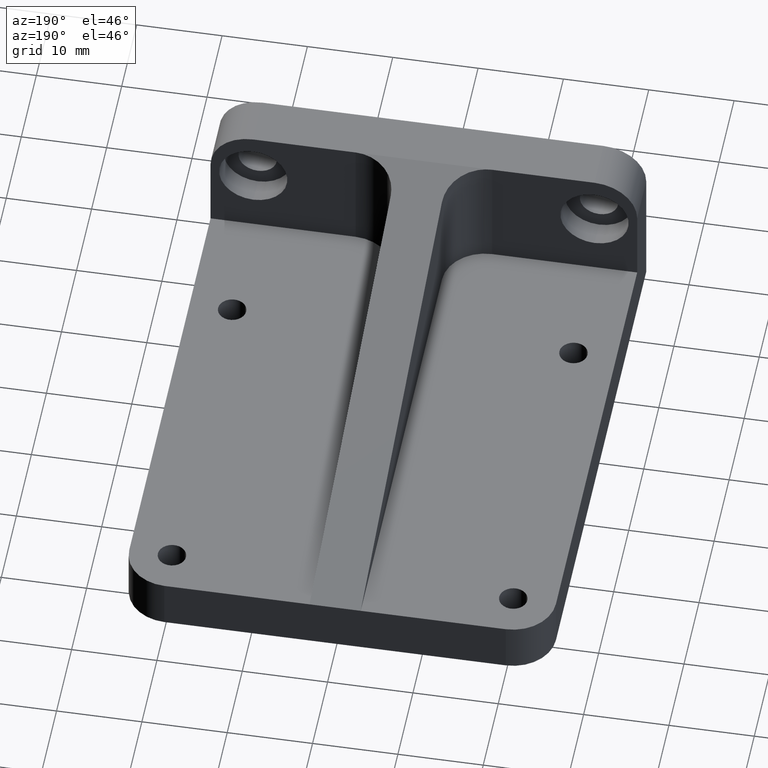
[diagram: clean part render]
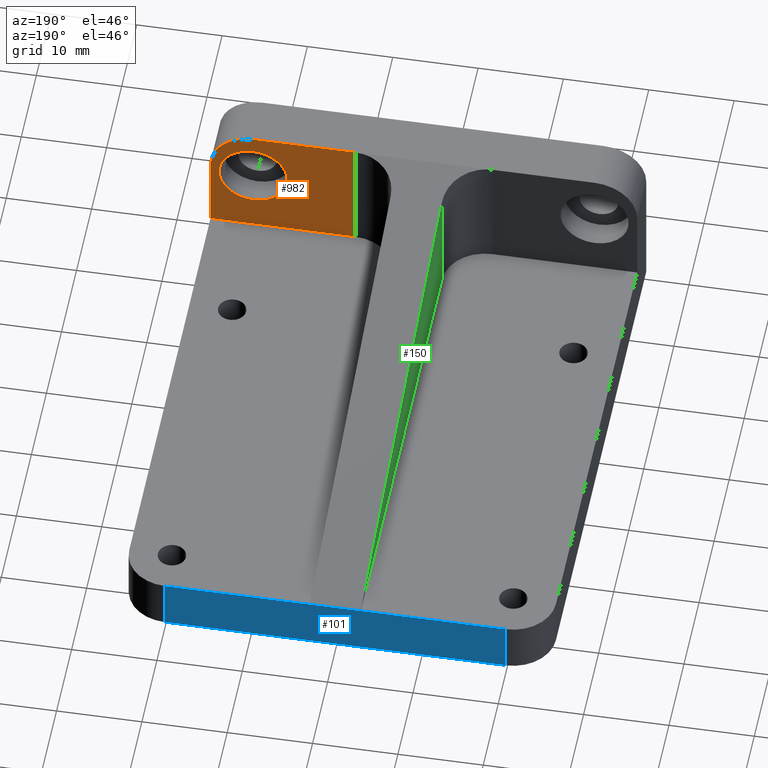
[diagram: same view with three faces highlighted in distinct colors, each labeled with its STEP entity id]
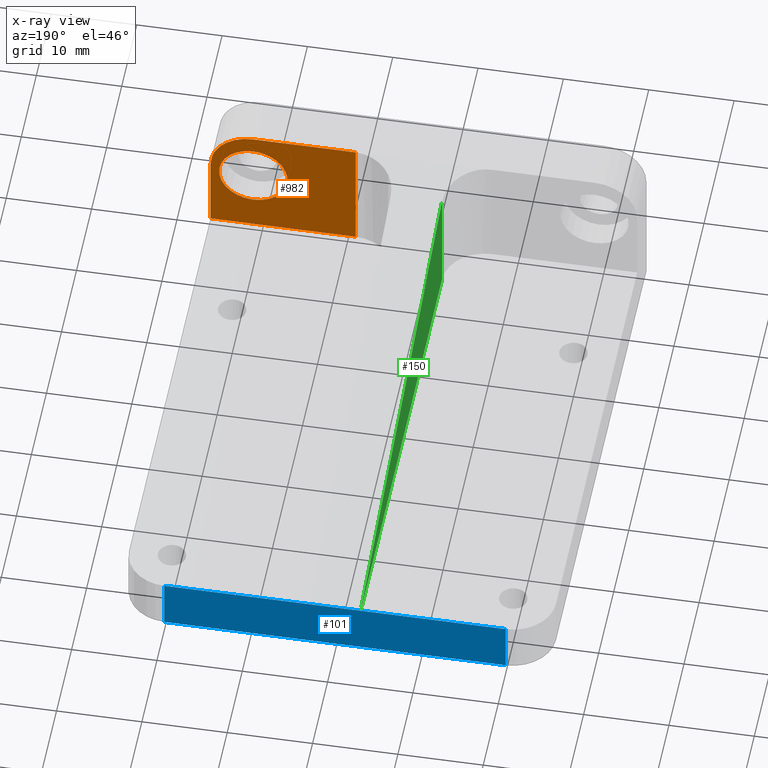
[diagram: x-ray of the same camera — body ghosted, the three highlighted faces saturated]
A machine part, auxiliary view with three faces highlighted in distinct colors.
The next image is the same camera in x-ray (body ghosted, the three faces saturated) — at least one of them is partly hidden behind the body in this view.
Their STEP definitions:

[orange] entity #982 — the highlighted planar face has unit normal (-0, -1, 0).
#4 = ORIENTED_EDGE ( 'NONE', *, *, #549, .T. ) ;
#6 = LINE ( 'NONE', #694, #988 ) ;
#36 = ORIENTED_EDGE ( 'NONE', *, *, #595, .T. ) ;
#43 = ORIENTED_EDGE ( 'NONE', *, *, #643, .F. ) ;
#82 = VERTEX_POINT ( 'NONE', #650 ) ;
#83 = VERTEX_POINT ( 'NONE', #743 ) ;
#97 = ORIENTED_EDGE ( 'NONE', *, *, #1219, .T. ) ;
#114 = AXIS2_PLACEMENT_3D ( 'NONE', #353, #948, #1125 ) ;
#142 = CARTESIAN_POINT ( 'NONE',  ( 20.00000000000000000, 5.999999999999997335, 20.00000000000000000 ) ) ;
#176 = DIRECTION ( 'NONE',  ( -0.0000000000000000000, 1.000000000000000000, -0.0000000000000000000 ) ) ;
#190 = DIRECTION ( 'NONE',  ( 0.0000000000000000000, 0.0000000000000000000, 1.000000000000000000 ) ) ;
#249 = DIRECTION ( 'NONE',  ( 1.000000000000000000, 0.0000000000000000000, 0.0000000000000000000 ) ) ;
#297 = EDGE_CURVE ( 'NONE', #851, #1053, #416, .T. ) ;
#319 = DIRECTION ( 'NONE',  ( -0.0000000000000000000, -0.0000000000000000000, 1.000000000000000000 ) ) ;
#331 = CARTESIAN_POINT ( 'NONE',  ( 25.00000000000000000, 5.999999999999997335, 15.00000000000000000 ) ) ;
#353 = CARTESIAN_POINT ( 'NONE',  ( 25.00000000000000000, 5.999999999999997335, -62.96824596572466248 ) ) ;
#366 = ORIENTED_EDGE ( 'NONE', *, *, #515, .F. ) ;
#409 = DIRECTION ( 'NONE',  ( -1.000000000000000000, -0.0000000000000000000, -0.0000000000000000000 ) ) ;
#414 = DIRECTION ( 'NONE',  ( 0.0000000000000000000, 0.0000000000000000000, 1.000000000000000000 ) ) ;
#416 = LINE ( 'NONE', #621, #701 ) ;
#417 = CIRCLE ( 'NONE', #436, 4.000000000000000000 ) ;
#436 = AXIS2_PLACEMENT_3D ( 'NONE', #1130, #176, #1240 ) ;
#512 = VECTOR ( 'NONE', #319, 1000.000000000000000 ) ;
#515 = EDGE_CURVE ( 'NONE', #1238, #852, #632, .T. ) ;
#539 = CARTESIAN_POINT ( 'NONE',  ( 25.00000000000000000, 5.999999999999997335, 6.000000000000000000 ) ) ;
#549 = EDGE_CURVE ( 'NONE', #1238, #82, #6, .T. ) ;
#553 = PLANE ( 'NONE',  #114 ) ;
#571 = AXIS2_PLACEMENT_3D ( 'NONE', #746, #1223, #249 ) ;
#590 = CARTESIAN_POINT ( 'NONE',  ( 8.000000000000007105, 5.999999999999998224, 20.00000000000000355 ) ) ;
#595 = EDGE_CURVE ( 'NONE', #82, #1053, #976, .T. ) ;
#621 = CARTESIAN_POINT ( 'NONE',  ( 25.00000000000000000, 5.999999999999997335, 20.00000000000000000 ) ) ;
#632 = LINE ( 'NONE', #1024, #512 ) ;
#643 = EDGE_CURVE ( 'NONE', #822, #83, #721, .T. ) ;
#650 = CARTESIAN_POINT ( 'NONE',  ( 8.000000000000007105, 5.999999999999998224, 6.000000000000005329 ) ) ;
#674 = FACE_OUTER_BOUND ( 'NONE', #717, .T. ) ;
#687 = AXIS2_PLACEMENT_3D ( 'NONE', #688, #1013, #414 ) ;
#688 = CARTESIAN_POINT ( 'NONE',  ( 20.00000000000000000, 5.999999999999997335, 13.99999999999999467 ) ) ;
#694 = CARTESIAN_POINT ( 'NONE',  ( 25.00000000000000000, 5.999999999999997335, 6.000000000000005329 ) ) ;
#701 = VECTOR ( 'NONE', #409, 1000.000000000000000 ) ;
#717 = EDGE_LOOP ( 'NONE', ( #856, #97, #366, #4, #36 ) ) ;
#719 = ORIENTED_EDGE ( 'NONE', *, *, #969, .F. ) ;
#721 = CIRCLE ( 'NONE', #687, 4.000000000000000000 ) ;
#743 = CARTESIAN_POINT ( 'NONE',  ( 20.00000000000000000, 5.999999999999997335, 9.999999999999994671 ) ) ;
#746 = CARTESIAN_POINT ( 'NONE',  ( 20.00000000000000000, 5.999999999999997335, 15.00000000000000000 ) ) ;
#822 = VERTEX_POINT ( 'NONE', #889 ) ;
#847 = VECTOR ( 'NONE', #190, 1000.000000000000000 ) ;
#851 = VERTEX_POINT ( 'NONE', #142 ) ;
#852 = VERTEX_POINT ( 'NONE', #331 ) ;
#856 = ORIENTED_EDGE ( 'NONE', *, *, #297, .F. ) ;
#889 = CARTESIAN_POINT ( 'NONE',  ( 20.00000000000000000, 5.999999999999997335, 17.99999999999999645 ) ) ;
#935 = EDGE_LOOP ( 'NONE', ( #43, #719 ) ) ;
#948 = DIRECTION ( 'NONE',  ( -3.942553354492744517E-17, -1.000000000000000000, 0.0000000000000000000 ) ) ;
#969 = EDGE_CURVE ( 'NONE', #83, #822, #417, .T. ) ;
#970 = DIRECTION ( 'NONE',  ( -1.000000000000000000, 3.942553354492744517E-17, 0.0000000000000000000 ) ) ;
#976 = LINE ( 'NONE', #590, #847 ) ;
#982 = ADVANCED_FACE ( 'NONE', ( #674, #1150 ), #553, .F. ) ;
#988 = VECTOR ( 'NONE', #970, 1000.000000000000000 ) ;
#1004 = CIRCLE ( 'NONE', #571, 5.000000000000000888 ) ;
#1013 = DIRECTION ( 'NONE',  ( -0.0000000000000000000, 1.000000000000000000, -0.0000000000000000000 ) ) ;
#1024 = CARTESIAN_POINT ( 'NONE',  ( 25.00000000000000000, 5.999999999999997335, -62.96824596572466248 ) ) ;
#1053 = VERTEX_POINT ( 'NONE', #1080 ) ;
#1080 = CARTESIAN_POINT ( 'NONE',  ( 8.000000000000007105, 5.999999999999997335, 20.00000000000000000 ) ) ;
#1125 = DIRECTION ( 'NONE',  ( 1.000000000000000000, -3.942553354492744517E-17, 0.0000000000000000000 ) ) ;
#1130 = CARTESIAN_POINT ( 'NONE',  ( 20.00000000000000000, 5.999999999999997335, 13.99999999999999467 ) ) ;
#1150 = FACE_BOUND ( 'NONE', #935, .T. ) ;
#1219 = EDGE_CURVE ( 'NONE', #851, #852, #1004, .T. ) ;
#1223 = DIRECTION ( 'NONE',  ( 3.942553354492744517E-17, 1.000000000000000000, 0.0000000000000000000 ) ) ;
#1238 = VERTEX_POINT ( 'NONE', #539 ) ;
#1240 = DIRECTION ( 'NONE',  ( 0.0000000000000000000, 0.0000000000000000000, 1.000000000000000000 ) ) ;

[blue] entity #101 — the highlighted planar face has unit normal (0, -1, 0).
#24 = CARTESIAN_POINT ( 'NONE',  ( 25.00000000000000000, 65.00000000000000000, 0.0000000000000000000 ) ) ;
#34 = AXIS2_PLACEMENT_3D ( 'NONE', #826, #730, #1113 ) ;
#44 = EDGE_CURVE ( 'NONE', #998, #711, #534, .T. ) ;
#56 = PLANE ( 'NONE',  #34 ) ;
#60 = LINE ( 'NONE', #604, #1179 ) ;
#77 = VERTEX_POINT ( 'NONE', #853 ) ;
#100 = VERTEX_POINT ( 'NONE', #932 ) ;
#101 = ADVANCED_FACE ( 'NONE', ( #525 ), #56, .F. ) ;
#134 = LINE ( 'NONE', #636, #760 ) ;
#136 = CARTESIAN_POINT ( 'NONE',  ( -3.000000000000006217, 65.00000000000000000, 6.000000000000005329 ) ) ;
#148 = VECTOR ( 'NONE', #790, 1000.000000000000000 ) ;
#162 = EDGE_LOOP ( 'NONE', ( #506, #1089, #398, #677, #388, #1108 ) ) ;
#254 = EDGE_CURVE ( 'NONE', #77, #686, #673, .T. ) ;
#293 = EDGE_CURVE ( 'NONE', #711, #686, #60, .T. ) ;
#300 = CARTESIAN_POINT ( 'NONE',  ( 20.00000000000000000, 65.00000000000000000, 6.000000000000000000 ) ) ;
#336 = EDGE_CURVE ( 'NONE', #100, #998, #537, .T. ) ;
#339 = VERTEX_POINT ( 'NONE', #300 ) ;
#388 = ORIENTED_EDGE ( 'NONE', *, *, #293, .T. ) ;
#390 = DIRECTION ( 'NONE',  ( -1.000000000000000000, -0.0000000000000000000, -0.0000000000000000000 ) ) ;
#398 = ORIENTED_EDGE ( 'NONE', *, *, #336, .T. ) ;
#460 = DIRECTION ( 'NONE',  ( 0.0000000000000000000, 0.0000000000000000000, 1.000000000000000000 ) ) ;
#506 = ORIENTED_EDGE ( 'NONE', *, *, #1201, .F. ) ;
#508 = CARTESIAN_POINT ( 'NONE',  ( -19.99999999999999645, 65.00000000000000000, 6.000000000000005329 ) ) ;
#525 = FACE_OUTER_BOUND ( 'NONE', #162, .T. ) ;
#534 = LINE ( 'NONE', #1129, #800 ) ;
#537 = LINE ( 'NONE', #24, #148 ) ;
#587 = DIRECTION ( 'NONE',  ( -1.000000000000000000, -0.0000000000000000000, -0.0000000000000000000 ) ) ;
#588 = CARTESIAN_POINT ( 'NONE',  ( 25.00000000000000000, 65.00000000000000000, 6.000000000000000000 ) ) ;
#604 = CARTESIAN_POINT ( 'NONE',  ( -25.00000000000000000, 65.00000000000000000, 6.000000000000005329 ) ) ;
#619 = VECTOR ( 'NONE', #390, 1000.000000000000000 ) ;
#636 = CARTESIAN_POINT ( 'NONE',  ( 20.00000000000000000, 65.00000000000000000, 0.0000000000000000000 ) ) ;
#637 = VECTOR ( 'NONE', #587, 1000.000000000000000 ) ;
#671 = LINE ( 'NONE', #882, #637 ) ;
#673 = LINE ( 'NONE', #588, #619 ) ;
#677 = ORIENTED_EDGE ( 'NONE', *, *, #44, .T. ) ;
#686 = VERTEX_POINT ( 'NONE', #136 ) ;
#711 = VERTEX_POINT ( 'NONE', #508 ) ;
#730 = DIRECTION ( 'NONE',  ( 0.0000000000000000000, -1.000000000000000000, 0.0000000000000000000 ) ) ;
#760 = VECTOR ( 'NONE', #1189, 1000.000000000000000 ) ;
#790 = DIRECTION ( 'NONE',  ( -1.000000000000000000, -0.0000000000000000000, -0.0000000000000000000 ) ) ;
#800 = VECTOR ( 'NONE', #460, 1000.000000000000000 ) ;
#826 = CARTESIAN_POINT ( 'NONE',  ( 25.00000000000000000, 65.00000000000000000, 0.0000000000000000000 ) ) ;
#853 = CARTESIAN_POINT ( 'NONE',  ( 3.000000000000006217, 65.00000000000000000, 6.000000000000005329 ) ) ;
#881 = EDGE_CURVE ( 'NONE', #339, #100, #134, .T. ) ;
#882 = CARTESIAN_POINT ( 'NONE',  ( 25.00000000000000000, 65.00000000000000000, 6.000000000000000000 ) ) ;
#932 = CARTESIAN_POINT ( 'NONE',  ( 20.00000000000000000, 65.00000000000000000, 0.0000000000000000000 ) ) ;
#998 = VERTEX_POINT ( 'NONE', #1042 ) ;
#1034 = DIRECTION ( 'NONE',  ( 1.000000000000000000, 0.0000000000000000000, -0.0000000000000000000 ) ) ;
#1042 = CARTESIAN_POINT ( 'NONE',  ( -19.99999999999999645, 65.00000000000000000, 0.0000000000000000000 ) ) ;
#1089 = ORIENTED_EDGE ( 'NONE', *, *, #881, .T. ) ;
#1108 = ORIENTED_EDGE ( 'NONE', *, *, #254, .F. ) ;
#1113 = DIRECTION ( 'NONE',  ( 0.0000000000000000000, -0.0000000000000000000, -1.000000000000000000 ) ) ;
#1129 = CARTESIAN_POINT ( 'NONE',  ( -19.99999999999999645, 65.00000000000000000, 6.000000000000000000 ) ) ;
#1179 = VECTOR ( 'NONE', #1034, 1000.000000000000000 ) ;
#1189 = DIRECTION ( 'NONE',  ( -0.0000000000000000000, -0.0000000000000000000, -1.000000000000000000 ) ) ;
#1201 = EDGE_CURVE ( 'NONE', #339, #77, #671, .T. ) ;

[green] entity #150 — the highlighted planar face has unit normal (1, 0, 0).
#87 = ORIENTED_EDGE ( 'NONE', *, *, #441, .T. ) ;
#136 = CARTESIAN_POINT ( 'NONE',  ( -3.000000000000006217, 65.00000000000000000, 6.000000000000005329 ) ) ;
#150 = ADVANCED_FACE ( 'NONE', ( #342 ), #735, .F. ) ;
#195 = ORIENTED_EDGE ( 'NONE', *, *, #855, .T. ) ;
#244 = DIRECTION ( 'NONE',  ( 1.000000000000000000, 2.352167425053297897E-16, 0.0000000000000000000 ) ) ;
#245 = AXIS2_PLACEMENT_3D ( 'NONE', #1117, #244, #1124 ) ;
#304 = LINE ( 'NONE', #585, #355 ) ;
#324 = CARTESIAN_POINT ( 'NONE',  ( -2.999999999999992450, 5.999999999999997335, 6.000000000000005329 ) ) ;
#342 = FACE_OUTER_BOUND ( 'NONE', #1246, .T. ) ;
#355 = VECTOR ( 'NONE', #1169, 1000.000000000000114 ) ;
#413 = CARTESIAN_POINT ( 'NONE',  ( -2.999999999999993339, 11.00000000000000000, 20.00000000000000355 ) ) ;
#428 = LINE ( 'NONE', #324, #1035 ) ;
#429 = DIRECTION ( 'NONE',  ( -0.0000000000000000000, 0.0000000000000000000, 1.000000000000000000 ) ) ;
#431 = ORIENTED_EDGE ( 'NONE', *, *, #540, .F. ) ;
#441 = EDGE_CURVE ( 'NONE', #865, #1222, #1097, .T. ) ;
#540 = EDGE_CURVE ( 'NONE', #686, #1222, #304, .T. ) ;
#585 = CARTESIAN_POINT ( 'NONE',  ( -3.000000000000006217, 65.00000000000000000, 6.000000000000001776 ) ) ;
#686 = VERTEX_POINT ( 'NONE', #136 ) ;
#735 = PLANE ( 'NONE',  #245 ) ;
#820 = DIRECTION ( 'NONE',  ( 2.352167425053297897E-16, -1.000000000000000000, 0.0000000000000000000 ) ) ;
#836 = CARTESIAN_POINT ( 'NONE',  ( -2.999999999999993339, 10.99999999999998934, 18.81355932203389969 ) ) ;
#855 = EDGE_CURVE ( 'NONE', #686, #865, #428, .T. ) ;
#865 = VERTEX_POINT ( 'NONE', #1207 ) ;
#1010 = VECTOR ( 'NONE', #429, 1000.000000000000000 ) ;
#1035 = VECTOR ( 'NONE', #820, 1000.000000000000000 ) ;
#1097 = LINE ( 'NONE', #413, #1010 ) ;
#1117 = CARTESIAN_POINT ( 'NONE',  ( -2.999999999999992450, 5.999999999999997335, -62.96824596572466248 ) ) ;
#1124 = DIRECTION ( 'NONE',  ( -2.352167425053297897E-16, 1.000000000000000000, 0.0000000000000000000 ) ) ;
#1169 = DIRECTION ( 'NONE',  ( 2.288618624651815978E-16, -0.9729828754005290792, 0.2308772924679221294 ) ) ;
#1207 = CARTESIAN_POINT ( 'NONE',  ( -2.999999999999993339, 11.00000000000000000, 6.000000000000005329 ) ) ;
#1222 = VERTEX_POINT ( 'NONE', #836 ) ;
#1246 = EDGE_LOOP ( 'NONE', ( #195, #87, #431 ) ) ;